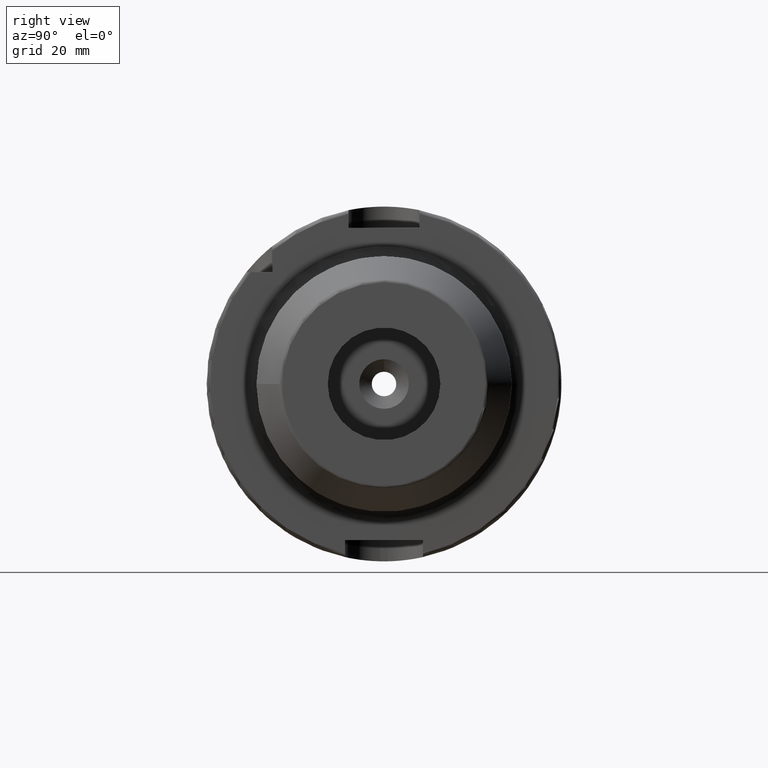
[diagram: clean part render]
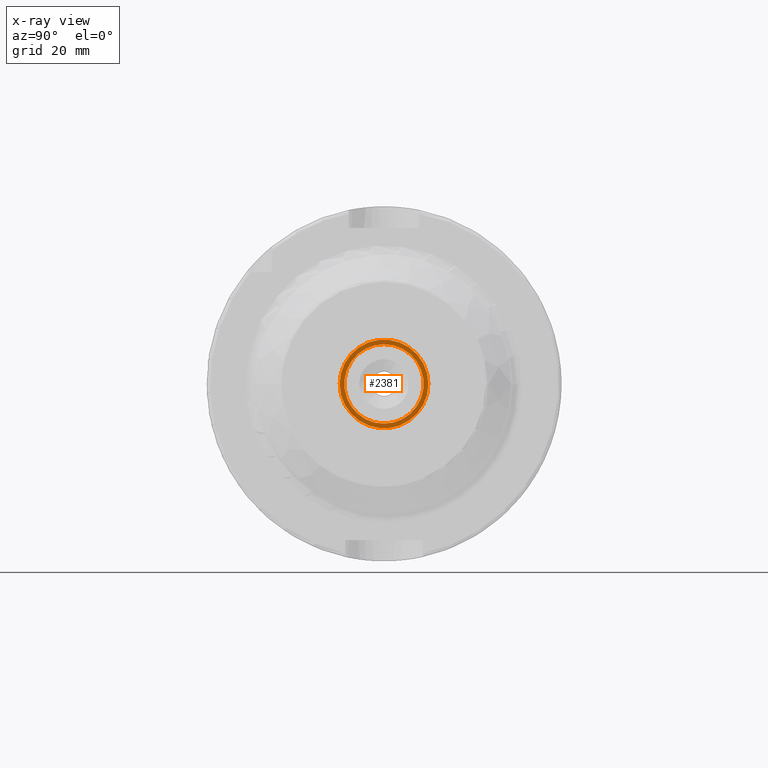
[diagram: x-ray — body ghosted, one internal face saturated and labeled with its STEP entity id]
A machine part, right view, then the same camera in x-ray: the body is ghosted and one INTERNAL B-rep face — a face not visible from any outside direction — is saturated and labeled: STEP entity #2381.
In plain terms, the highlighted planar face has unit normal (-1, 0, 0).
Its self-contained STEP definition (entity closure, byte-faithful):
#101=FACE_BOUND('',#652,.T.);
#137=PLANE('',#2692);
#519=FACE_OUTER_BOUND('',#651,.T.);
#651=EDGE_LOOP('',(#2141,#2142));
#652=EDGE_LOOP('',(#2143));
#825=CIRCLE('',#2680,11.188101);
#832=CIRCLE('',#2690,12.5);
#833=CIRCLE('',#2691,12.5);
#1093=VERTEX_POINT('',#5031);
#1099=VERTEX_POINT('',#5048);
#1100=VERTEX_POINT('',#5050);
#1451=EDGE_CURVE('',#1093,#1093,#825,.T.);
#1459=EDGE_CURVE('',#1099,#1100,#832,.T.);
#1460=EDGE_CURVE('',#1100,#1099,#833,.T.);
#2141=ORIENTED_EDGE('',*,*,#1460,.F.);
#2142=ORIENTED_EDGE('',*,*,#1459,.F.);
#2143=ORIENTED_EDGE('',*,*,#1451,.T.);
#2381=ADVANCED_FACE('',(#519,#101),#137,.F.);
#2680=AXIS2_PLACEMENT_3D('',#5033,#3364,#3365);
#2690=AXIS2_PLACEMENT_3D('',#5051,#3385,#3386);
#2691=AXIS2_PLACEMENT_3D('',#5052,#3387,#3388);
#2692=AXIS2_PLACEMENT_3D('',#5053,#3389,#3390);
#3364=DIRECTION('center_axis',(-1.,0.,0.));
#3365=DIRECTION('ref_axis',(0.,0.,1.));
#3385=DIRECTION('center_axis',(-1.,0.,0.));
#3386=DIRECTION('ref_axis',(0.,0.,1.));
#3387=DIRECTION('center_axis',(-1.,0.,0.));
#3388=DIRECTION('ref_axis',(0.,0.,1.));
#3389=DIRECTION('center_axis',(-1.,0.,0.));
#3390=DIRECTION('ref_axis',(0.,0.,1.));
#5031=CARTESIAN_POINT('',(22.5,-1.37014720781873E-15,-11.188101));
#5033=CARTESIAN_POINT('Origin',(22.5,0.,0.));
#5048=CARTESIAN_POINT('',(22.5,-12.5,1.53080849893419E-15));
#5050=CARTESIAN_POINT('',(22.5,12.5,0.));
#5051=CARTESIAN_POINT('Origin',(22.5,0.,0.));
#5052=CARTESIAN_POINT('Origin',(22.5,0.,0.));
#5053=CARTESIAN_POINT('Origin',(22.5,10.,0.));